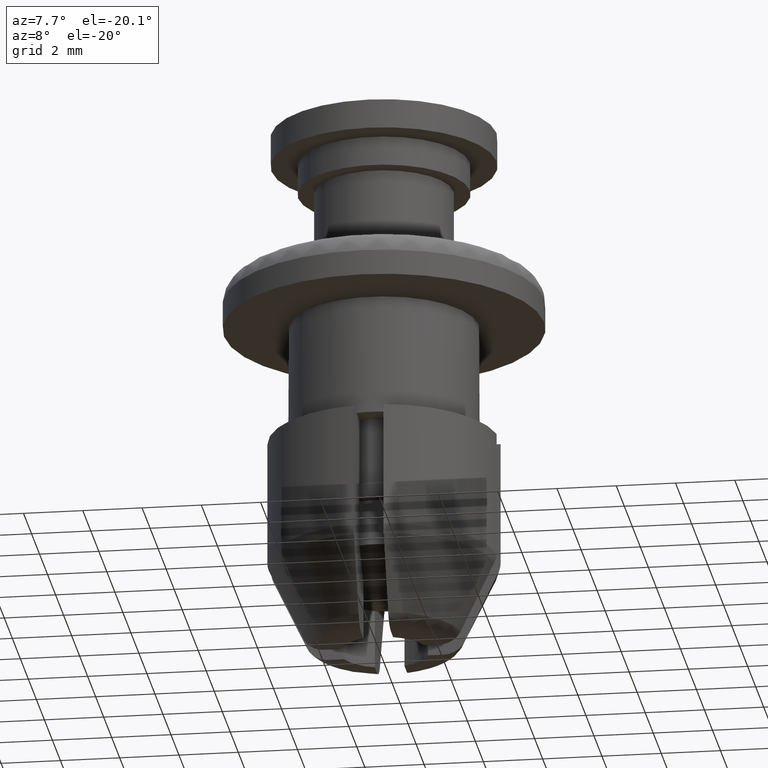
[diagram: clean part render]
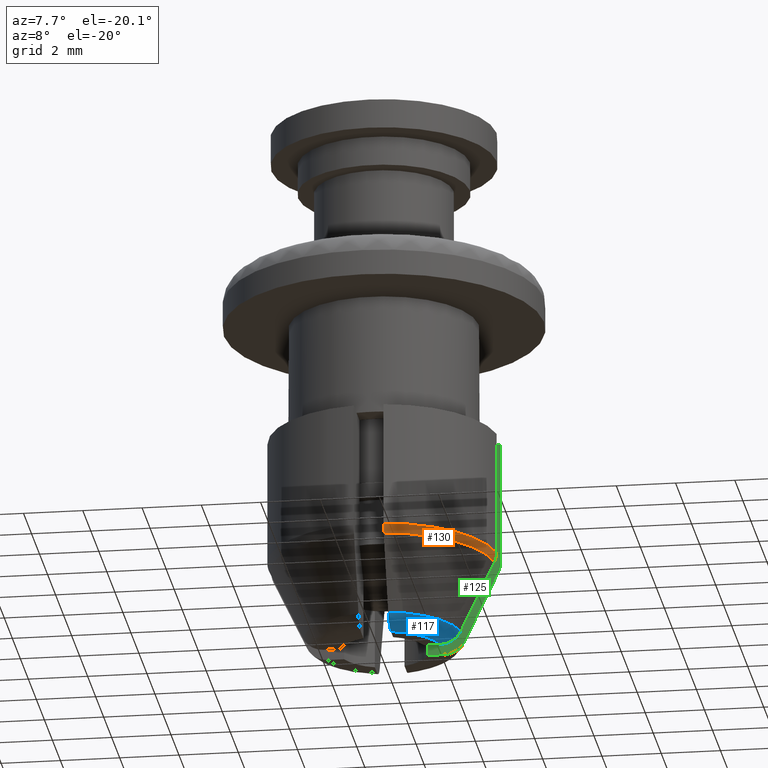
[diagram: same view with three faces highlighted in distinct colors, each labeled with its STEP entity id]
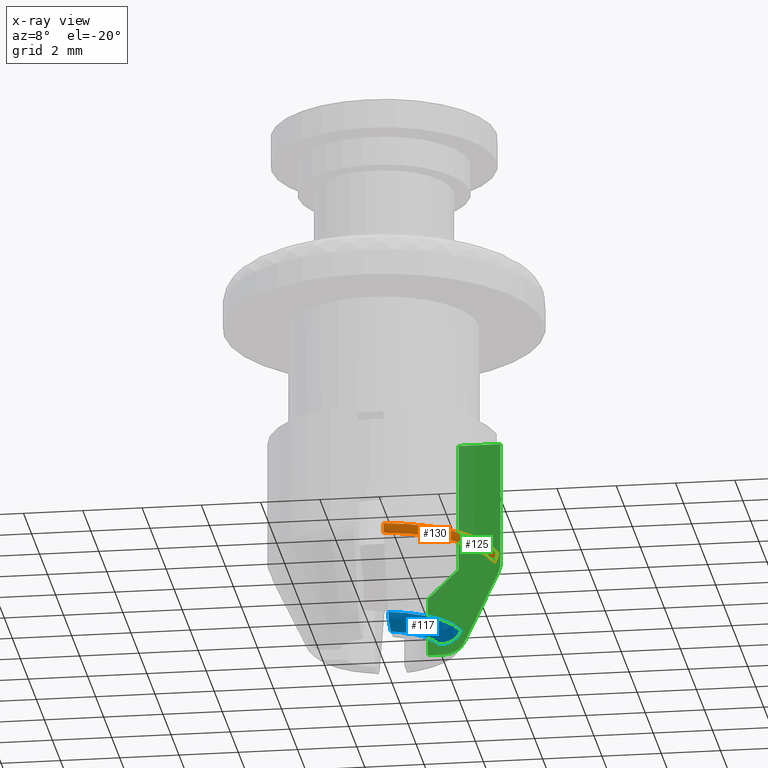
[diagram: x-ray of the same camera — body ghosted, the three highlighted faces saturated]
A machine part, auxiliary view with three faces highlighted in distinct colors.
The next image is the same camera in x-ray (body ghosted, the three faces saturated) — at least one of them is partly hidden behind the body in this view.
Their STEP definitions:

[orange] entity #130 — the highlighted face is a freeform B-spline surface patch.
#130=ADVANCED_FACE('',(#372),#371,.T.);
#371=( BOUNDED_SURFACE() B_SPLINE_SURFACE( 2,2,((#1117,#1118,#1119),(#1120,#1121,#1122),(#1123,#1124,#1125)), .UNSPECIFIED.,.F.,.F.,.F.) B_SPLINE_SURFACE_WITH_KNOTS((3,3),(3,3),(-3.45587652759E-04,4.38582706572E-01),(5.42611465959E-02,1.35767719416E+00), .UNSPECIFIED. ) GEOMETRIC_REPRESENTATION_ITEM() RATIONAL_B_SPLINE_SURFACE(((9.82335015752E-01,7.78647726664E-01,9.82334278491E-01),(9.27160542922E-01,7.34913687716E-01,9.27159847071E-01),(9.18228176591E-01,7.27833448667E-01,9.18227487443E-01))) REPRESENTATION_ITEM('') SURFACE() );
#372=FACE_OUTER_BOUND('',#1126,.T.);
#1117=CARTESIAN_POINT('',(5.04588755566E-01,-3.86721994643E+00,-1.03338710596E+01));
#1118=CARTESIAN_POINT('',(3.47910899739E+00,-3.47910923951E+00,-1.03338710596E+01));
#1119=CARTESIAN_POINT('',(3.86721991132E+00,-5.04589024698E-01,-1.03338710596E+01));
#1120=CARTESIAN_POINT('',(5.04596194412E-01,-3.86727695851E+00,-1.05002407967E+01));
#1121=CARTESIAN_POINT('',(3.47916028778E+00,-3.47916052991E+00,-1.05002407967E+01));
#1122=CARTESIAN_POINT('',(3.86727692339E+00,-5.04596463548E-01,-1.05002407967E+01));
#1123=CARTESIAN_POINT('',(4.95493158585E-01,-3.79751035881E+00,-1.06510010336E+01));
#1124=CARTESIAN_POINT('',(3.41639540549E+00,-3.41639564325E+00,-1.06510010336E+01));
#1125=CARTESIAN_POINT('',(3.79751032433E+00,-4.95493422866E-01,-1.06510010336E+01));
#1126=EDGE_LOOP('',(#1678,#1679,#1680,#1681));
#1678=ORIENTED_EDGE('',*,*,#2025,.F.);
#1679=ORIENTED_EDGE('',*,*,#2045,.T.);
#1680=ORIENTED_EDGE('',*,*,#2009,.F.);
#1681=ORIENTED_EDGE('',*,*,#2046,.F.);
#2009=EDGE_CURVE('',#2566,#2573,#2574,.T.);
#2025=EDGE_CURVE('',#2676,#2683,#2684,.T.);
#2045=EDGE_CURVE('',#2676,#2573,#2814,.T.);
#2046=EDGE_CURVE('',#2683,#2566,#2820,.T.);
#2566=VERTEX_POINT('',#3727);
#2573=VERTEX_POINT('',#3732);
#2574=(BOUNDED_CURVE() B_SPLINE_CURVE(3,(#3733,#3734,#3735,#3736,#3737,#3738),.UNSPECIFIED.,.F.,.F.) B_SPLINE_CURVE_WITH_KNOTS((4,2,4),(4.60532861707E-03,4.76814485432E-03,4.93096109157E-03),.UNSPECIFIED.) CURVE() GEOMETRIC_REPRESENTATION_ITEM() RATIONAL_B_SPLINE_CURVE((1.00000000000E+00,1.00000000000E+00,1.00000000000E+00,1.00000000000E+00,1.00000000000E+00,1.00000000000E+00)) REPRESENTATION_ITEM('') );
#2676=VERTEX_POINT('',#3801);
#2683=VERTEX_POINT('',#3805);
#2684=(BOUNDED_CURVE() B_SPLINE_CURVE(3,(#3806,#3807,#3808,#3809,#3810,#3811),.UNSPECIFIED.,.F.,.F.) B_SPLINE_CURVE_WITH_KNOTS((4,2,4),(2.52815349468E-03,2.69109019946E-03,2.85402690424E-03),.UNSPECIFIED.) CURVE() GEOMETRIC_REPRESENTATION_ITEM() RATIONAL_B_SPLINE_CURVE((1.00000000000E+00,1.00000000000E+00,1.00000000000E+00,1.00000000000E+00,1.00000000000E+00,1.00000000000E+00)) REPRESENTATION_ITEM('') );
#2814=CIRCLE('',#3892,3.90000000000E+00);
#2820=CIRCLE('',#3896,3.82970000000E+00);
#3727=CARTESIAN_POINT('',(5.00000000000E-01,-3.79692007949E+00,-1.06510000000E+01));
#3732=CARTESIAN_POINT('',(5.00000000000E-01,-3.86781592116E+00,-1.03339000000E+01));
#3733=CARTESIAN_POINT('',(5.00000000000E-01,-3.79692007949E+00,-1.06510000000E+01));
#3734=CARTESIAN_POINT('',(5.00000000000E-01,-3.82025710276E+00,-1.06014221822E+01));
#3735=CARTESIAN_POINT('',(5.00000000000E-01,-3.83817154966E+00,-1.05489853033E+01));
#3736=CARTESIAN_POINT('',(5.00000000000E-01,-3.86188808504E+00,-1.04425175385E+01));
#3737=CARTESIAN_POINT('',(5.00000000000E-01,-3.86783284218E+00,-1.03885690052E+01));
#3738=CARTESIAN_POINT('',(5.00000000000E-01,-3.86781592116E+00,-1.03339000000E+01));
#3801=CARTESIAN_POINT('',(3.86781592116E+00,-5.00000000000E-01,-1.03339000000E+01));
#3805=CARTESIAN_POINT('',(3.79692007949E+00,-5.00000000000E-01,-1.06510000000E+01));
#3806=CARTESIAN_POINT('',(3.86781592116E+00,-5.00000000000E-01,-1.03339000000E+01));
#3807=CARTESIAN_POINT('',(3.86783296286E+00,-5.00000000000E-01,-1.03889588856E+01));
#3808=CARTESIAN_POINT('',(3.86180433911E+00,-5.00000000000E-01,-1.04430109235E+01));
#3809=CARTESIAN_POINT('',(3.83810279678E+00,-5.00000000000E-01,-1.05491757538E+01));
#3810=CARTESIAN_POINT('',(3.82009574163E+00,-5.00000000000E-01,-1.06017649823E+01));
#3811=CARTESIAN_POINT('',(3.79692007949E+00,-5.00000000000E-01,-1.06510000000E+01));
#3889=CARTESIAN_POINT('',(0.00000000000E+00,0.00000000000E+00,-1.03339000000E+01));
#3890=DIRECTION('',(0.00000000000E+00,0.00000000000E+00,-1.00000000000E+00));
#3891=DIRECTION('',(1.00000000000E+00,-0.00000000000E+00,-0.00000000000E+00));
#3892=AXIS2_PLACEMENT_3D('',#3889,#3890,#3891);
#3893=CARTESIAN_POINT('',(0.00000000000E+00,0.00000000000E+00,-1.06510000000E+01));
#3894=DIRECTION('',(0.00000000000E+00,0.00000000000E+00,-1.00000000000E+00));
#3895=DIRECTION('',(1.00000000000E+00,-0.00000000000E+00,-0.00000000000E+00));
#3896=AXIS2_PLACEMENT_3D('',#3893,#3894,#3895);

[blue] entity #117 — the highlighted face is a freeform B-spline surface patch.
#117=ADVANCED_FACE('',(#242),#241,.T.);
#241=( BOUNDED_SURFACE() B_SPLINE_SURFACE( 2,2,((#1041,#1042,#1043,#1044,#1045),(#1046,#1047,#1048,#1049,#1050),(#1051,#1052,#1053,#1054,#1055)), .UNSPECIFIED.,.F.,.F.,.F.) B_SPLINE_SURFACE_WITH_KNOTS((3,3),(3,2,3),(0.00000000000E+00,1.00000000000E+00),(0.00000000000E+00,5.00000000000E-01,1.00000000000E+00), .UNSPECIFIED. ) GEOMETRIC_REPRESENTATION_ITEM() RATIONAL_B_SPLINE_SURFACE(((1.00000000000E+00,8.39903950225E-01,1.00000000000E+00,8.39903950225E-01,1.00000000000E+00),(8.25512471237E-01,6.93351185552E-01,8.25512471237E-01,6.93351185552E-01,8.25512471237E-01),(1.00000000000E+00,8.39903950225E-01,1.00000000000E+00,8.39903950225E-01,1.00000000000E+00))) REPRESENTATION_ITEM('') SURFACE() );
#242=FACE_OUTER_BOUND('',#1056,.T.);
#1041=CARTESIAN_POINT('',(2.65964136788E+00,-4.99652873187E-01,-1.30584579684E+01));
#1042=CARTESIAN_POINT('',(2.46393723876E+00,-4.62886964974E-01,-1.35003000000E+01));
#1043=CARTESIAN_POINT('',(1.98762926723E+00,-3.73405484738E-01,-1.35003000000E+01));
#1044=CARTESIAN_POINT('',(1.51132129571E+00,-2.83924004502E-01,-1.35003000000E+01));
#1045=CARTESIAN_POINT('',(1.31561716659E+00,-2.47158096289E-01,-1.30584579684E+01));
#1046=CARTESIAN_POINT('',(2.31804019867E+00,-2.31798846118E+00,-1.30584579684E+01));
#1047=CARTESIAN_POINT('',(2.14747207478E+00,-2.14742414428E+00,-1.35003000000E+01));
#1048=CARTESIAN_POINT('',(1.73234053175E+00,-1.73230186678E+00,-1.35003000000E+01));
#1049=CARTESIAN_POINT('',(1.31720898872E+00,-1.31717958928E+00,-1.35003000000E+01));
#1050=CARTESIAN_POINT('',(1.14664086483E+00,-1.14661527238E+00,-1.30584579684E+01));
#1051=CARTESIAN_POINT('',(4.99712235581E-01,-2.65963021510E+00,-1.30584579684E+01));
#1052=CARTESIAN_POINT('',(4.62941959311E-01,-2.46392690663E+00,-1.35003000000E+01));
#1053=CARTESIAN_POINT('',(3.73449848024E-01,-1.98762093242E+00,-1.35003000000E+01));
#1054=CARTESIAN_POINT('',(2.83957736738E-01,-1.51131495822E+00,-1.35003000000E+01));
#1055=CARTESIAN_POINT('',(2.47187460468E-01,-1.31561164975E+00,-1.30584579684E+01));
#1056=EDGE_LOOP('',(#1584,#1585,#1586,#1587));
#1584=ORIENTED_EDGE('',*,*,#1972,.F.);
#1585=ORIENTED_EDGE('',*,*,#1973,.T.);
#1586=ORIENTED_EDGE('',*,*,#1974,.F.);
#1587=ORIENTED_EDGE('',*,*,#1975,.F.);
#1972=EDGE_CURVE('',#2322,#2323,#2324,.T.);
#1973=EDGE_CURVE('',#2322,#2330,#2331,.T.);
#1974=EDGE_CURVE('',#2337,#2330,#2338,.T.);
#1975=EDGE_CURVE('',#2323,#2337,#2344,.T.);
#2322=VERTEX_POINT('',#3569);
#2323=VERTEX_POINT('',#3570);
#2324=(BOUNDED_CURVE() B_SPLINE_CURVE(3,(#3571,#3572,#3573,#3574,#3575,#3576),.UNSPECIFIED.,.F.,.F.) B_SPLINE_CURVE_WITH_KNOTS((4,2,4),(3.24611043927E-03,3.68094730946E-03,4.11578417966E-03),.UNSPECIFIED.) CURVE() GEOMETRIC_REPRESENTATION_ITEM() RATIONAL_B_SPLINE_CURVE((1.00000000000E+00,1.00000000000E+00,1.00000000000E+00,1.00000000000E+00,1.00000000000E+00,1.00000000000E+00)) REPRESENTATION_ITEM('') );
#2330=VERTEX_POINT('',#3577);
#2331=CIRCLE('',#3581,2.70602087899E+00);
#2337=VERTEX_POINT('',#3582);
#2338=(BOUNDED_CURVE() B_SPLINE_CURVE(3,(#3583,#3584,#3585,#3586,#3587,#3588),.UNSPECIFIED.,.F.,.F.) B_SPLINE_CURVE_WITH_KNOTS((4,2,4),(4.28628102214E-03,4.72080951359E-03,5.15533800505E-03),.UNSPECIFIED.) CURVE() GEOMETRIC_REPRESENTATION_ITEM() RATIONAL_B_SPLINE_CURVE((1.00000000000E+00,1.00000000000E+00,1.00000000000E+00,1.00000000000E+00,1.00000000000E+00,1.00000000000E+00)) REPRESENTATION_ITEM('') );
#2344=CIRCLE('',#3592,2.02240000000E+00);
#3569=CARTESIAN_POINT('',(2.65942644146E+00,-5.00000000000E-01,-1.30587841873E+01));
#3570=CARTESIAN_POINT('',(1.95961775865E+00,-5.00000000000E-01,-1.35003000000E+01));
#3571=CARTESIAN_POINT('',(2.65942644146E+00,-5.00000000000E-01,-1.30587841873E+01));
#3572=CARTESIAN_POINT('',(2.59861902028E+00,-5.00000000000E-01,-1.31912170710E+01));
#3573=CARTESIAN_POINT('',(2.49740680038E+00,-5.00000000000E-01,-1.33051335631E+01));
#3574=CARTESIAN_POINT('',(2.25163325167E+00,-5.00000000000E-01,-1.34590001962E+01));
#3575=CARTESIAN_POINT('',(2.10501243795E+00,-5.00000000000E-01,-1.35003000000E+01));
#3576=CARTESIAN_POINT('',(1.95961775865E+00,-5.00000000000E-01,-1.35003000000E+01));
#3577=CARTESIAN_POINT('',(5.00000000000E-01,-2.65942644146E+00,-1.30587841873E+01));
#3578=CARTESIAN_POINT('',(0.00000000000E+00,0.00000000000E+00,-1.30587841873E+01));
#3579=DIRECTION('',(0.00000000000E+00,0.00000000000E+00,-1.00000000000E+00));
#3580=DIRECTION('',(1.00000000000E+00,-0.00000000000E+00,-0.00000000000E+00));
#3581=AXIS2_PLACEMENT_3D('',#3578,#3579,#3580);
#3582=CARTESIAN_POINT('',(5.00000000000E-01,-1.95961775865E+00,-1.35003000000E+01));
#3583=CARTESIAN_POINT('',(5.00000000000E-01,-1.95961775865E+00,-1.35003000000E+01));
#3584=CARTESIAN_POINT('',(5.00000000000E-01,-2.10523021489E+00,-1.35003000000E+01));
#3585=CARTESIAN_POINT('',(5.00000000000E-01,-2.25077643428E+00,-1.34595655480E+01));
#3586=CARTESIAN_POINT('',(5.00000000000E-01,-2.49848132678E+00,-1.33044318890E+01));
#3587=CARTESIAN_POINT('',(5.00000000000E-01,-2.59900524852E+00,-1.31903759020E+01));
#3588=CARTESIAN_POINT('',(5.00000000000E-01,-2.65942644146E+00,-1.30587841873E+01));
#3589=CARTESIAN_POINT('',(0.00000000000E+00,0.00000000000E+00,-1.35003000000E+01));
#3590=DIRECTION('',(0.00000000000E+00,0.00000000000E+00,-1.00000000000E+00));
#3591=DIRECTION('',(1.00000000000E+00,-0.00000000000E+00,-0.00000000000E+00));
#3592=AXIS2_PLACEMENT_3D('',#3589,#3590,#3591);

[green] entity #125 — the highlighted planar face has unit normal (0, -1, 0).
#125=ADVANCED_FACE('',(#322),#321,.T.);
#321=PLANE('',#1095);
#322=FACE_OUTER_BOUND('',#1096,.T.);
#1092=CARTESIAN_POINT('',(1.16885164166E+00,5.00000000000E-01,-5.35997000000E+00));
#1093=DIRECTION('',(0.00000000000E+00,-1.00000000000E+00,0.00000000000E+00));
#1094=DIRECTION('',(0.00000000000E+00,0.00000000000E+00,-1.00000000000E+00));
#1095=AXIS2_PLACEMENT_3D('',#1092,#1093,#1094);
#1096=EDGE_LOOP('',(#1634,#1635,#1636,#1637,#1638,#1639,#1640,#1641,#1642,#1643));
#1634=ORIENTED_EDGE('',*,*,#2012,.F.);
#1635=ORIENTED_EDGE('',*,*,#2013,.T.);
#1636=ORIENTED_EDGE('',*,*,#2014,.T.);
#1637=ORIENTED_EDGE('',*,*,#1986,.T.);
#1638=ORIENTED_EDGE('',*,*,#2015,.T.);
#1639=ORIENTED_EDGE('',*,*,#2016,.T.);
#1640=ORIENTED_EDGE('',*,*,#2017,.T.);
#1641=ORIENTED_EDGE('',*,*,#2018,.T.);
#1642=ORIENTED_EDGE('',*,*,#2019,.T.);
#1643=ORIENTED_EDGE('',*,*,#2020,.F.);
#1986=EDGE_CURVE('',#2406,#2413,#2420,.T.);
#2012=EDGE_CURVE('',#2593,#2594,#2595,.T.);
#2013=EDGE_CURVE('',#2593,#2601,#2602,.T.);
#2014=EDGE_CURVE('',#2601,#2406,#2608,.T.);
#2015=EDGE_CURVE('',#2413,#2614,#2615,.T.);
#2016=EDGE_CURVE('',#2614,#2621,#2622,.T.);
#2017=EDGE_CURVE('',#2621,#2628,#2629,.T.);
#2018=EDGE_CURVE('',#2628,#2635,#2636,.T.);
#2019=EDGE_CURVE('',#2635,#2642,#2643,.T.);
#2020=EDGE_CURVE('',#2594,#2642,#2649,.T.);
#2406=VERTEX_POINT('',#3629);
#2413=VERTEX_POINT('',#3634);
#2420=LINE('',#3639,#3640);
#2593=VERTEX_POINT('',#3746);
#2594=VERTEX_POINT('',#3747);
#2595=LINE('',#3748,#3749);
#2601=VERTEX_POINT('',#3751);
#2602=LINE('',#3752,#3753);
#2608=(BOUNDED_CURVE() B_SPLINE_CURVE(3,(#3755,#3756,#3757,#3758),.UNSPECIFIED.,.F.,.F.) B_SPLINE_CURVE_WITH_KNOTS((4,4),(6.51247333295E-04,2.09062139719E-03),.UNSPECIFIED.) CURVE() GEOMETRIC_REPRESENTATION_ITEM() RATIONAL_B_SPLINE_CURVE((1.00000000000E+00,1.00000000000E+00,1.00000000000E+00,1.00000000000E+00)) REPRESENTATION_ITEM('') );
#2614=VERTEX_POINT('',#3759);
#2615=LINE('',#3760,#3761);
#2621=VERTEX_POINT('',#3763);
#2622=(BOUNDED_CURVE() B_SPLINE_CURVE(3,(#3764,#3765,#3766,#3767,#3768,#3769),.UNSPECIFIED.,.F.,.F.) B_SPLINE_CURVE_WITH_KNOTS((4,2,4),(6.61370178721E-04,1.09648787979E-03,1.53160558085E-03),.UNSPECIFIED.) CURVE() GEOMETRIC_REPRESENTATION_ITEM() RATIONAL_B_SPLINE_CURVE((1.00000000000E+00,1.00000000000E+00,1.00000000000E+00,1.00000000000E+00,1.00000000000E+00,1.00000000000E+00)) REPRESENTATION_ITEM('') );
#2628=VERTEX_POINT('',#3770);
#2629=(BOUNDED_CURVE() B_SPLINE_CURVE(3,(#3771,#3772,#3773,#3774),.UNSPECIFIED.,.F.,.F.) B_SPLINE_CURVE_WITH_KNOTS((4,4),(3.59600571184E-03,6.25887595562E-03),.UNSPECIFIED.) CURVE() GEOMETRIC_REPRESENTATION_ITEM() RATIONAL_B_SPLINE_CURVE((1.00000000000E+00,1.00000000000E+00,1.00000000000E+00,1.00000000000E+00)) REPRESENTATION_ITEM('') );
#2635=VERTEX_POINT('',#3775);
#2636=(BOUNDED_CURVE() B_SPLINE_CURVE(3,(#3776,#3777,#3778,#3779,#3780,#3781),.UNSPECIFIED.,.F.,.F.) B_SPLINE_CURVE_WITH_KNOTS((4,2,4),(1.86324909117E-03,2.02641197676E-03,2.18957486235E-03),.UNSPECIFIED.) CURVE() GEOMETRIC_REPRESENTATION_ITEM() RATIONAL_B_SPLINE_CURVE((1.00000000000E+00,1.00000000000E+00,1.00000000000E+00,1.00000000000E+00,1.00000000000E+00,1.00000000000E+00)) REPRESENTATION_ITEM('') );
#2642=VERTEX_POINT('',#3782);
#2643=LINE('',#3783,#3784);
#2649=LINE('',#3786,#3787);
#3629=CARTESIAN_POINT('',(1.41421356237E+00,5.00000000000E-01,-1.15003633768E+01));
#3634=CARTESIAN_POINT('',(1.41421356237E+00,5.00000000000E-01,-1.35003000000E+01));
#3639=CARTESIAN_POINT('',(1.41421356237E+00,5.00000000000E-01,-1.15003633768E+01));
#3640=VECTOR('',#3641,1.99993662322E+00);
#3641=DIRECTION('',(0.00000000000E+00,0.00000000000E+00,-1.00000000000E+00));
#3746=CARTESIAN_POINT('',(2.44948974278E+00,5.00000000000E-01,-6.10000000000E+00));
#3747=CARTESIAN_POINT('',(3.16069612586E+00,5.00000000000E-01,-6.10000000000E+00));
#3748=CARTESIAN_POINT('',(2.44948974278E+00,5.00000000000E-01,-6.10000000000E+00));
#3749=VECTOR('',#3750,7.11206383073E-01);
#3750=DIRECTION('',(1.00000000000E+00,0.00000000000E+00,0.00000000000E+00));
#3751=CARTESIAN_POINT('',(2.44948974278E+00,5.00000000000E-01,-1.05003633768E+01));
#3752=CARTESIAN_POINT('',(2.44948974278E+00,5.00000000000E-01,-6.10000000000E+00));
#3753=VECTOR('',#3754,4.40036337678E+00);
#3754=DIRECTION('',(0.00000000000E+00,0.00000000000E+00,-1.00000000000E+00));
#3755=CARTESIAN_POINT('',(2.44948974278E+00,5.00000000000E-01,-1.05003633768E+01));
#3756=CARTESIAN_POINT('',(2.10677986974E+00,5.00000000000E-01,-1.08361491043E+01));
#3757=CARTESIAN_POINT('',(1.76331286427E+00,5.00000000000E-01,-1.11712293985E+01));
#3758=CARTESIAN_POINT('',(1.41421356237E+00,5.00000000000E-01,-1.15003633768E+01));
#3759=CARTESIAN_POINT('',(1.95961775865E+00,5.00000000000E-01,-1.35003000000E+01));
#3760=CARTESIAN_POINT('',(1.41421356237E+00,5.00000000000E-01,-1.35003000000E+01));
#3761=VECTOR('',#3762,5.45404196273E-01);
#3762=DIRECTION('',(1.00000000000E+00,0.00000000000E+00,0.00000000000E+00));
#3763=CARTESIAN_POINT('',(2.65942644146E+00,5.00000000000E-01,-1.30587841873E+01));
#3764=CARTESIAN_POINT('',(1.95961775865E+00,5.00000000000E-01,-1.35003000000E+01));
#3765=CARTESIAN_POINT('',(2.10462776740E+00,5.00000000000E-01,-1.35003000000E+01));
#3766=CARTESIAN_POINT('',(2.25023771116E+00,5.00000000000E-01,-1.34598918269E+01));
#3767=CARTESIAN_POINT('',(2.49893683128E+00,5.00000000000E-01,-1.33041577249E+01));
#3768=CARTESIAN_POINT('',(2.59867208575E+00,5.00000000000E-01,-1.31911014994E+01));
#3769=CARTESIAN_POINT('',(2.65942644146E+00,5.00000000000E-01,-1.30587841873E+01));
#3770=CARTESIAN_POINT('',(3.79692007949E+00,5.00000000000E-01,-1.06510000000E+01));
#3771=CARTESIAN_POINT('',(2.65942644146E+00,5.00000000000E-01,-1.30587841873E+01));
#3772=CARTESIAN_POINT('',(3.04018898643E+00,5.00000000000E-01,-1.22569467916E+01));
#3773=CARTESIAN_POINT('',(3.41887766359E+00,5.00000000000E-01,-1.14541237658E+01));
#3774=CARTESIAN_POINT('',(3.79692007949E+00,5.00000000000E-01,-1.06510000000E+01));
#3775=CARTESIAN_POINT('',(3.86781592116E+00,5.00000000000E-01,-1.03339000000E+01));
#3776=CARTESIAN_POINT('',(3.79692007949E+00,5.00000000000E-01,-1.06510000000E+01));
#3777=CARTESIAN_POINT('',(3.82012529799E+00,5.00000000000E-01,-1.06017021919E+01));
#3778=CARTESIAN_POINT('',(3.83783946449E+00,5.00000000000E-01,-1.05502207867E+01));
#3779=CARTESIAN_POINT('',(3.86189560485E+00,5.00000000000E-01,-1.04427356578E+01));
#3780=CARTESIAN_POINT('',(3.86783276955E+00,5.00000000000E-01,-1.03883343377E+01));
#3781=CARTESIAN_POINT('',(3.86781592116E+00,5.00000000000E-01,-1.03339000000E+01));
#3782=CARTESIAN_POINT('',(3.86781592116E+00,5.00000000000E-01,-6.10000000000E+00));
#3783=CARTESIAN_POINT('',(3.86781592116E+00,5.00000000000E-01,-1.03339000000E+01));
#3784=VECTOR('',#3785,4.23390000000E+00);
#3785=DIRECTION('',(0.00000000000E+00,0.00000000000E+00,1.00000000000E+00));
#3786=CARTESIAN_POINT('',(3.16069612586E+00,5.00000000000E-01,-6.10000000000E+00));
#3787=VECTOR('',#3788,7.07119795307E-01);
#3788=DIRECTION('',(1.00000000000E+00,0.00000000000E+00,0.00000000000E+00));